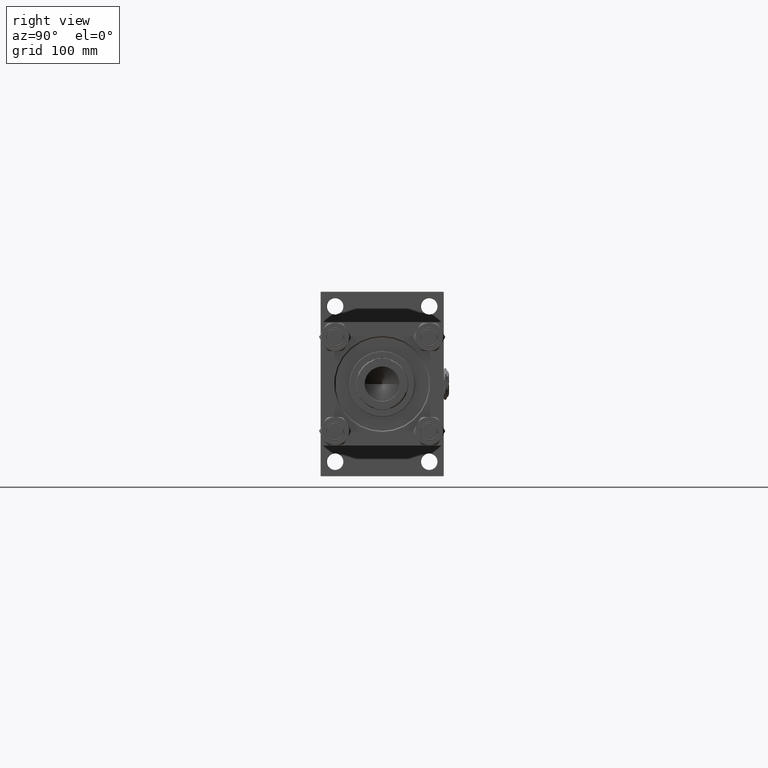
[diagram: clean part render]
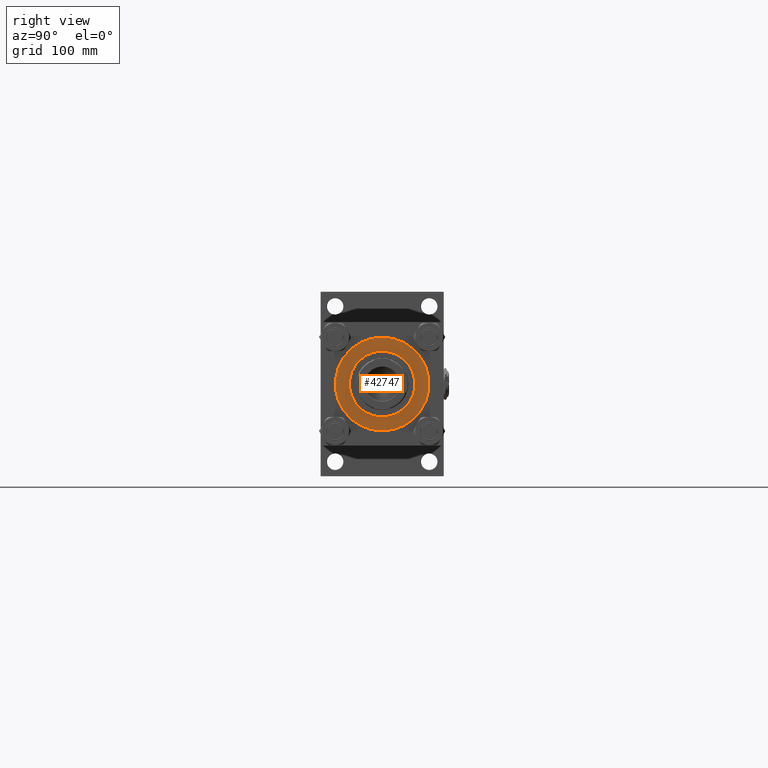
[diagram: same view with one face highlighted and labeled with its STEP entity id]
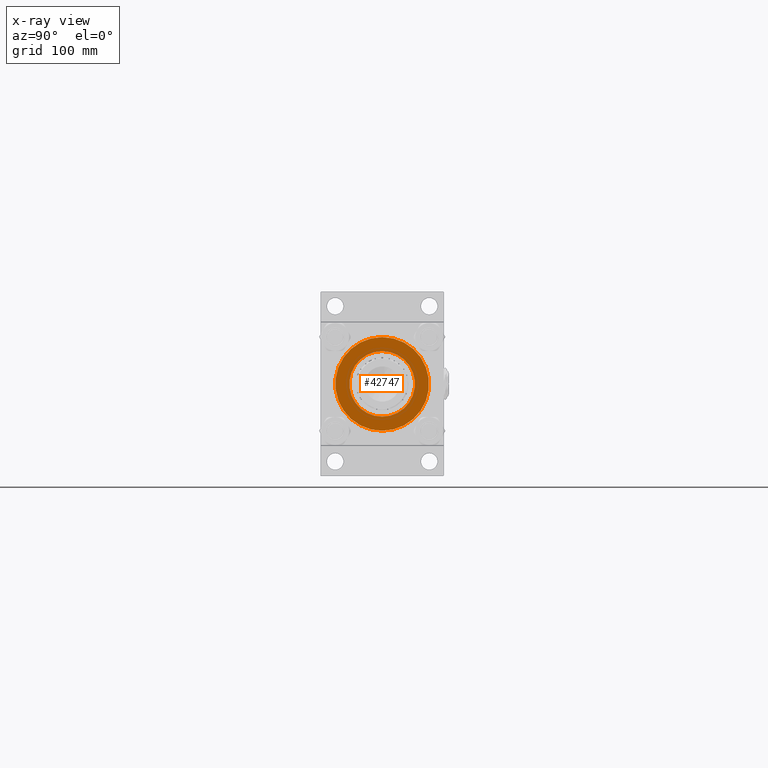
[diagram: x-ray of the same camera — body ghosted, the highlighted face saturated]
A machine part, right view. The second image highlights one B-rep face of the part: STEP entity #42747.
The next image is the same camera in x-ray: the body ghosted, the highlighted face saturated — about 0% of this face is hidden behind the body in this view.
In plain terms, the highlighted planar face has unit normal (1, 0, 0).
Its self-contained STEP definition (entity closure, byte-faithful):
#551 = ORIENTED_EDGE ( 'NONE', *, *, #6434, .F. ) ;
#770 = CARTESIAN_POINT ( 'NONE',  ( -62.75000000000000000, 0.000000000000000000, 28.69999999999999929 ) ) ;
#2204 = DIRECTION ( 'NONE',  ( 1.000000000000000000, 0.000000000000000000, 0.000000000000000000 ) ) ;
#3561 = CIRCLE ( 'NONE', #40933, 44.00000000000000000 ) ;
#4281 = EDGE_LOOP ( 'NONE', ( #31842, #13748 ) ) ;
#6213 = DIRECTION ( 'NONE',  ( 0.000000000000000000, 0.000000000000000000, 1.000000000000000000 ) ) ;
#6434 = EDGE_CURVE ( 'NONE', #24550, #40176, #3561, .T. ) ;
#6506 = DIRECTION ( 'NONE',  ( 0.000000000000000000, 0.000000000000000000, 1.000000000000000000 ) ) ;
#6742 = CARTESIAN_POINT ( 'NONE',  ( 0.000000000000000000, 0.000000000000000000, 28.69999999999999929 ) ) ;
#7027 = DIRECTION ( 'NONE',  ( 1.000000000000000000, 0.000000000000000000, 0.000000000000000000 ) ) ;
#8776 = FACE_OUTER_BOUND ( 'NONE', #4281, .T. ) ;
#9043 = FACE_BOUND ( 'NONE', #37943, .T. ) ;
#9163 = ORIENTED_EDGE ( 'NONE', *, *, #12115, .F. ) ;
#12115 = EDGE_CURVE ( 'NONE', #40176, #24550, #51316, .T. ) ;
#13748 = ORIENTED_EDGE ( 'NONE', *, *, #16211, .T. ) ;
#14496 = CARTESIAN_POINT ( 'NONE',  ( 0.000000000000000000, 0.000000000000000000, 28.69999999999999929 ) ) ;
#16211 = EDGE_CURVE ( 'NONE', #36997, #23320, #19071, .T. ) ;
#16666 = AXIS2_PLACEMENT_3D ( 'NONE', #32732, #40709, #41228 ) ;
#17286 = PLANE ( 'NONE',  #16666 ) ;
#17726 = AXIS2_PLACEMENT_3D ( 'NONE', #14496, #31270, #27011 ) ;
#19071 = CIRCLE ( 'NONE', #37738, 62.75000000000000000 ) ;
#20740 = AXIS2_PLACEMENT_3D ( 'NONE', #26958, #27225, #43173 ) ;
#23320 = VERTEX_POINT ( 'NONE', #770 ) ;
#23663 = CIRCLE ( 'NONE', #17726, 62.75000000000000000 ) ;
#24550 = VERTEX_POINT ( 'NONE', #48712 ) ;
#26958 = CARTESIAN_POINT ( 'NONE',  ( 0.000000000000000000, 0.000000000000000000, 28.69999999999999929 ) ) ;
#27011 = DIRECTION ( 'NONE',  ( 1.000000000000000000, 0.000000000000000000, 0.000000000000000000 ) ) ;
#27225 = DIRECTION ( 'NONE',  ( 0.000000000000000000, 0.000000000000000000, 1.000000000000000000 ) ) ;
#31270 = DIRECTION ( 'NONE',  ( 0.000000000000000000, 0.000000000000000000, 1.000000000000000000 ) ) ;
#31842 = ORIENTED_EDGE ( 'NONE', *, *, #51657, .T. ) ;
#32732 = CARTESIAN_POINT ( 'NONE',  ( 0.000000000000000000, 0.000000000000000000, 28.69999999999999929 ) ) ;
#36997 = VERTEX_POINT ( 'NONE', #49644 ) ;
#37738 = AXIS2_PLACEMENT_3D ( 'NONE', #6742, #6213, #2204 ) ;
#37943 = EDGE_LOOP ( 'NONE', ( #9163, #551 ) ) ;
#38425 = CARTESIAN_POINT ( 'NONE',  ( 0.000000000000000000, 0.000000000000000000, 28.69999999999999929 ) ) ;
#40176 = VERTEX_POINT ( 'NONE', #43967 ) ;
#40709 = DIRECTION ( 'NONE',  ( 0.000000000000000000, 0.000000000000000000, 1.000000000000000000 ) ) ;
#40933 = AXIS2_PLACEMENT_3D ( 'NONE', #38425, #6506, #7027 ) ;
#41228 = DIRECTION ( 'NONE',  ( 1.000000000000000000, 0.000000000000000000, -0.000000000000000000 ) ) ;
#42747 = ADVANCED_FACE ( 'NONE', ( #9043, #8776 ), #17286, .T. ) ;
#43173 = DIRECTION ( 'NONE',  ( 1.000000000000000000, 0.000000000000000000, 0.000000000000000000 ) ) ;
#43967 = CARTESIAN_POINT ( 'NONE',  ( -44.00000000000000000, 0.000000000000000000, 28.69999999999999929 ) ) ;
#48712 = CARTESIAN_POINT ( 'NONE',  ( 44.00000000000000000, 5.388445916248353619E-15, 28.69999999999999929 ) ) ;
#49644 = CARTESIAN_POINT ( 'NONE',  ( 62.75000000000000000, 7.684658664649641591E-15, 28.69999999999999929 ) ) ;
#51316 = CIRCLE ( 'NONE', #20740, 44.00000000000000000 ) ;
#51657 = EDGE_CURVE ( 'NONE', #23320, #36997, #23663, .T. ) ;